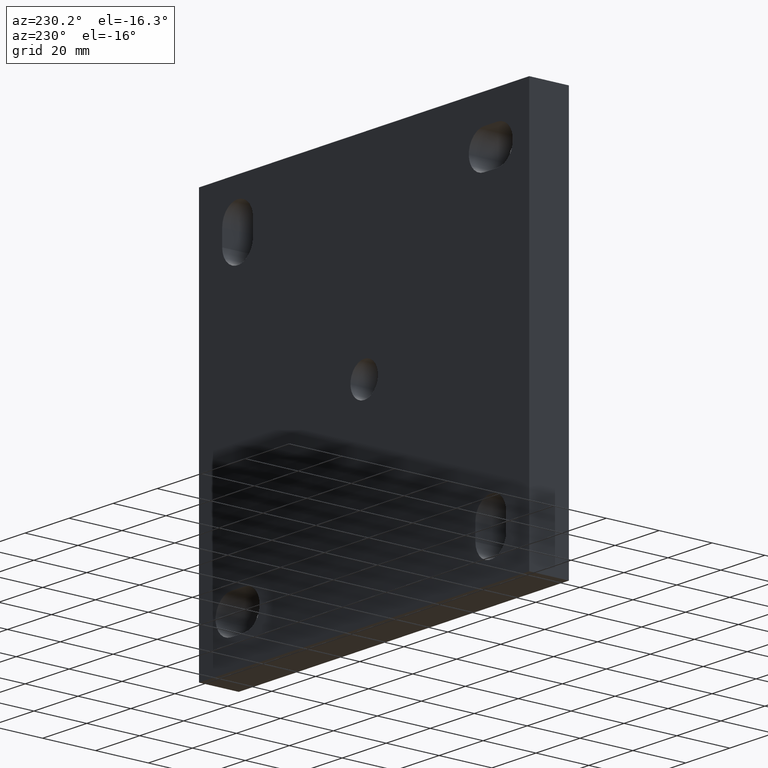
[diagram: clean part render]
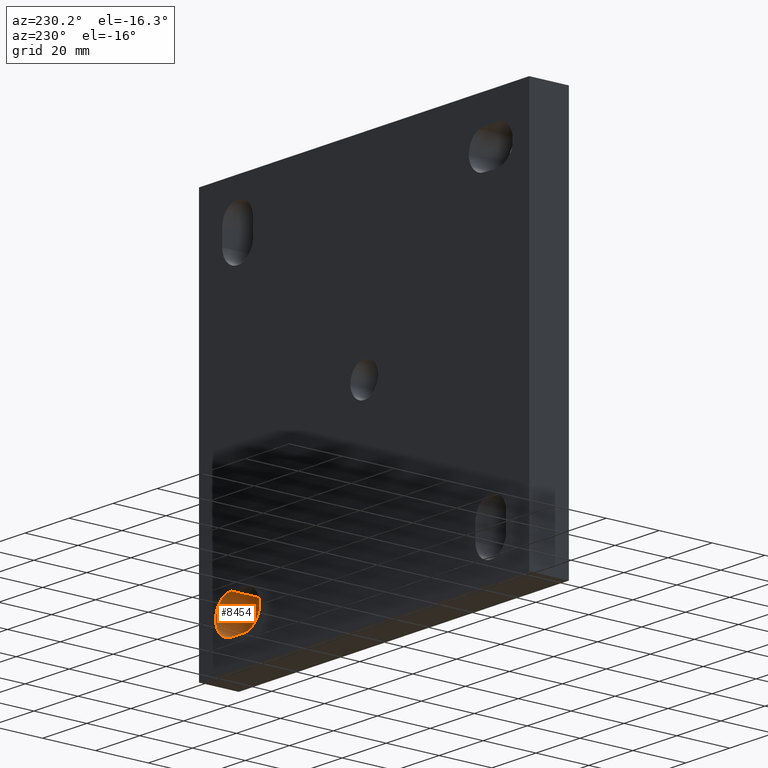
[diagram: same view with one face highlighted and labeled with its STEP entity id]
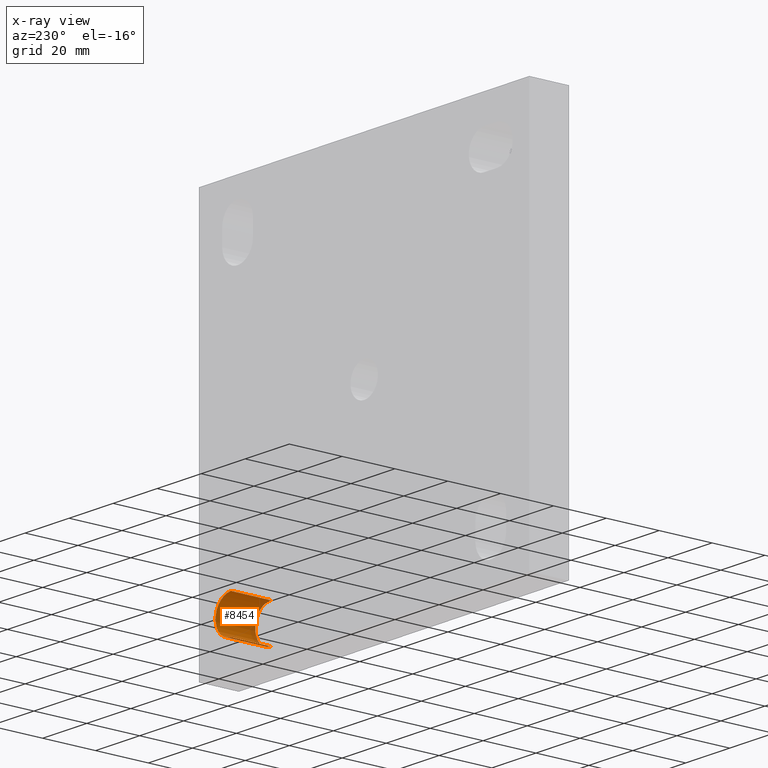
[diagram: x-ray of the same camera — body ghosted, the highlighted face saturated]
A machine part, auxiliary view. The second image highlights one B-rep face of the part: STEP entity #8454.
The next image is the same camera in x-ray: the body ghosted, the highlighted face saturated — about 7% of this face is hidden behind the body in this view.
In plain terms, the highlighted cylindrical surface (edge-blend (fillet) strip) has radius 7 mm, axis along (-0, 1, -0).
Its self-contained STEP definition (entity closure, byte-faithful):
#122 = LINE ( 'NONE', #11207, #7928 ) ;
#525 = ORIENTED_EDGE ( 'NONE', *, *, #3322, .T. ) ;
#1263 = VECTOR ( 'NONE', #12392, 1000.000000000000000 ) ;
#1352 = VERTEX_POINT ( 'NONE', #7978 ) ;
#2683 = CARTESIAN_POINT ( 'NONE',  ( 60.50000000000001421, 0.000000000000000000, -50.50000000000004263 ) ) ;
#3322 = EDGE_CURVE ( 'NONE', #7626, #9383, #13044, .T. ) ;
#3628 = LINE ( 'NONE', #2683, #1263 ) ;
#3935 = EDGE_LOOP ( 'NONE', ( #525, #12861, #6703, #5149 ) ) ;
#4438 = EDGE_CURVE ( 'NONE', #1352, #9383, #122, .T. ) ;
#4582 = DIRECTION ( 'NONE',  ( 0.000000000000000000, 0.000000000000000000, 1.000000000000000000 ) ) ;
#4769 = EDGE_CURVE ( 'NONE', #7148, #1352, #10308, .T. ) ;
#4912 = CARTESIAN_POINT ( 'NONE',  ( 60.50000000000002842, 15.00000000000000000, -57.50000000000003553 ) ) ;
#5149 = ORIENTED_EDGE ( 'NONE', *, *, #13552, .T. ) ;
#5704 = AXIS2_PLACEMENT_3D ( 'NONE', #10042, #11038, #13162 ) ;
#5913 = FACE_OUTER_BOUND ( 'NONE', #3935, .T. ) ;
#6703 = ORIENTED_EDGE ( 'NONE', *, *, #4769, .F. ) ;
#7148 = VERTEX_POINT ( 'NONE', #7567 ) ;
#7567 = CARTESIAN_POINT ( 'NONE',  ( 60.50000000000001421, 0.000000000000000000, -50.50000000000003553 ) ) ;
#7624 = DIRECTION ( 'NONE',  ( 0.000000000000000000, 1.000000000000000000, 0.000000000000000000 ) ) ;
#7626 = VERTEX_POINT ( 'NONE', #12825 ) ;
#7928 = VECTOR ( 'NONE', #12313, 1000.000000000000000 ) ;
#7957 = CYLINDRICAL_SURFACE ( 'NONE', #5704, 6.999999999999992006 ) ;
#7978 = CARTESIAN_POINT ( 'NONE',  ( 60.50000000000001421, 0.000000000000000000, -64.50000000000002842 ) ) ;
#8167 = AXIS2_PLACEMENT_3D ( 'NONE', #4912, #13266, #4582 ) ;
#8454 = ADVANCED_FACE ( 'NONE', ( #5913 ), #7957, .F. ) ;
#8863 = AXIS2_PLACEMENT_3D ( 'NONE', #12060, #7624, #11042 ) ;
#9383 = VERTEX_POINT ( 'NONE', #10057 ) ;
#10042 = CARTESIAN_POINT ( 'NONE',  ( 60.50000000000002842, 0.000000000000000000, -57.50000000000003553 ) ) ;
#10057 = CARTESIAN_POINT ( 'NONE',  ( 60.50000000000001421, 15.00000000000000000, -64.50000000000002842 ) ) ;
#10308 = CIRCLE ( 'NONE', #8863, 6.999999999999992006 ) ;
#11038 = DIRECTION ( 'NONE',  ( -0.000000000000000000, 1.000000000000000000, -0.000000000000000000 ) ) ;
#11042 = DIRECTION ( 'NONE',  ( 0.000000000000000000, 0.000000000000000000, 1.000000000000000000 ) ) ;
#11207 = CARTESIAN_POINT ( 'NONE',  ( 60.50000000000001421, 0.000000000000000000, -64.50000000000002842 ) ) ;
#12060 = CARTESIAN_POINT ( 'NONE',  ( 60.50000000000002842, 0.000000000000000000, -57.50000000000003553 ) ) ;
#12313 = DIRECTION ( 'NONE',  ( -0.000000000000000000, 1.000000000000000000, -0.000000000000000000 ) ) ;
#12392 = DIRECTION ( 'NONE',  ( -0.000000000000000000, 1.000000000000000000, -0.000000000000000000 ) ) ;
#12825 = CARTESIAN_POINT ( 'NONE',  ( 60.50000000000001421, 15.00000000000000000, -50.50000000000004263 ) ) ;
#12861 = ORIENTED_EDGE ( 'NONE', *, *, #4438, .F. ) ;
#13044 = CIRCLE ( 'NONE', #8167, 6.999999999999992006 ) ;
#13162 = DIRECTION ( 'NONE',  ( 0.000000000000000000, 0.000000000000000000, 1.000000000000000000 ) ) ;
#13266 = DIRECTION ( 'NONE',  ( 0.000000000000000000, 1.000000000000000000, 0.000000000000000000 ) ) ;
#13552 = EDGE_CURVE ( 'NONE', #7148, #7626, #3628, .T. ) ;